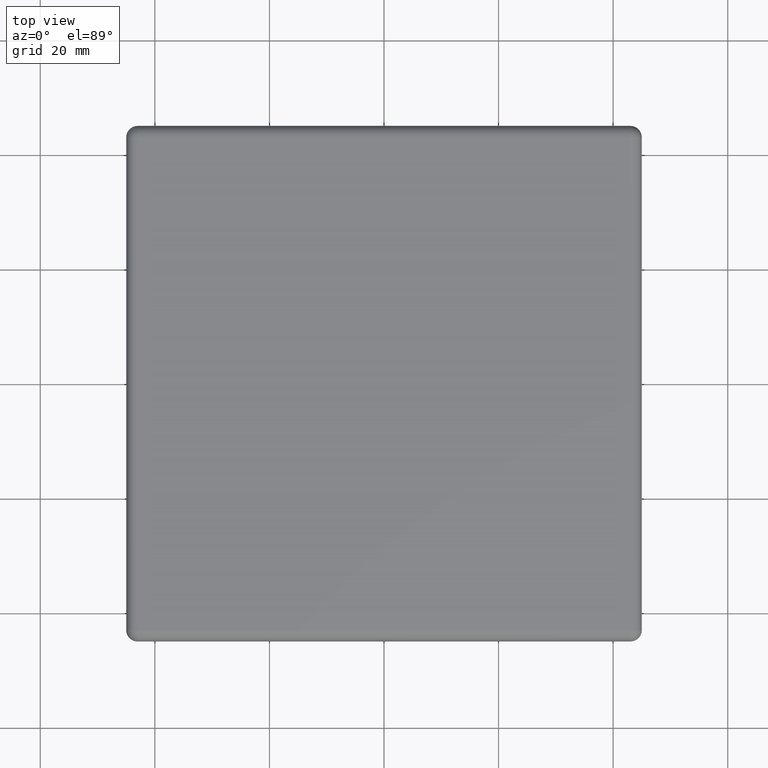
[diagram: clean part render]
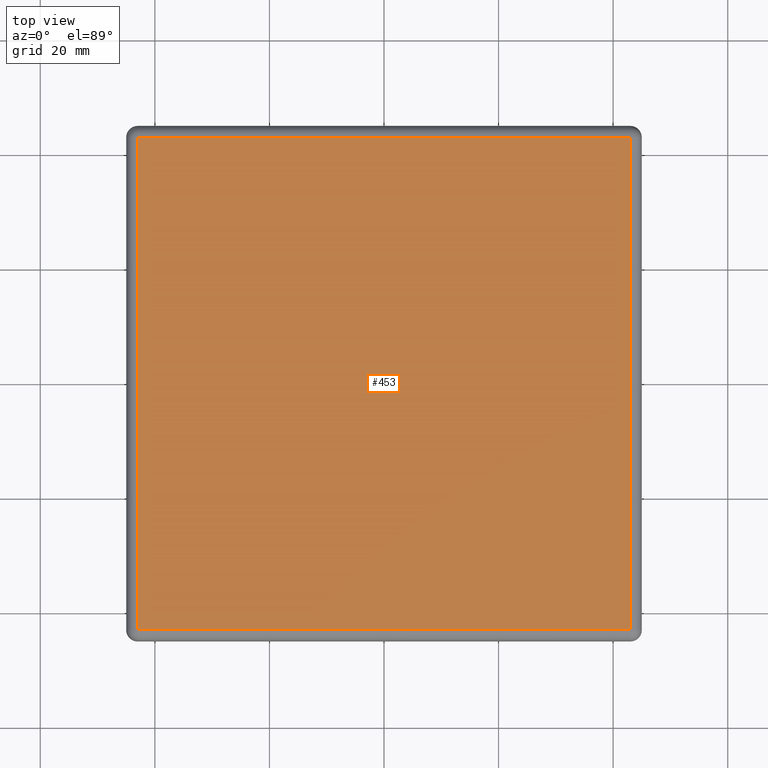
[diagram: same view with one face highlighted and labeled with its STEP entity id]
A machine part, top view. The second image highlights one B-rep face of the part: STEP entity #453.
In plain terms, the highlighted planar face has unit normal (0, 0, 1).
Its self-contained STEP definition (entity closure, byte-faithful):
#43=PLANE('',#527);
#65=FACE_OUTER_BOUND('',#107,.T.);
#107=EDGE_LOOP('',(#364,#365,#366,#367));
#137=LINE('',#795,#165);
#138=LINE('',#797,#166);
#139=LINE('',#799,#167);
#140=LINE('',#800,#168);
#165=VECTOR('',#645,10.);
#166=VECTOR('',#646,10.);
#167=VECTOR('',#647,10.);
#168=VECTOR('',#648,10.);
#237=VERTEX_POINT('',#793);
#238=VERTEX_POINT('',#794);
#239=VERTEX_POINT('',#796);
#240=VERTEX_POINT('',#798);
#281=EDGE_CURVE('',#237,#238,#137,.T.);
#282=EDGE_CURVE('',#239,#237,#138,.T.);
#283=EDGE_CURVE('',#240,#239,#139,.T.);
#284=EDGE_CURVE('',#238,#240,#140,.T.);
#364=ORIENTED_EDGE('',*,*,#281,.F.);
#365=ORIENTED_EDGE('',*,*,#282,.F.);
#366=ORIENTED_EDGE('',*,*,#283,.F.);
#367=ORIENTED_EDGE('',*,*,#284,.F.);
#453=ADVANCED_FACE('',(#65),#43,.T.);
#527=AXIS2_PLACEMENT_3D('',#792,#643,#644);
#643=DIRECTION('center_axis',(0.,0.,1.));
#644=DIRECTION('ref_axis',(1.,0.,0.));
#645=DIRECTION('',(-9.86864910777917E-17,-1.,0.));
#646=DIRECTION('',(1.,1.97372982155583E-16,0.));
#647=DIRECTION('',(9.86864910777917E-17,1.,0.));
#648=DIRECTION('',(-1.,-1.97372982155583E-16,0.));
#792=CARTESIAN_POINT('Origin',(0.,0.,2.5));
#793=CARTESIAN_POINT('',(43.,43.,2.5));
#794=CARTESIAN_POINT('',(43.,-43.,2.5));
#795=CARTESIAN_POINT('',(43.,-22.5,2.5));
#796=CARTESIAN_POINT('',(-43.,43.,2.5));
#797=CARTESIAN_POINT('',(22.5,43.,2.5));
#798=CARTESIAN_POINT('',(-43.,-43.,2.5));
#799=CARTESIAN_POINT('',(-43.,22.5,2.5));
#800=CARTESIAN_POINT('',(-22.5,-43.,2.5));